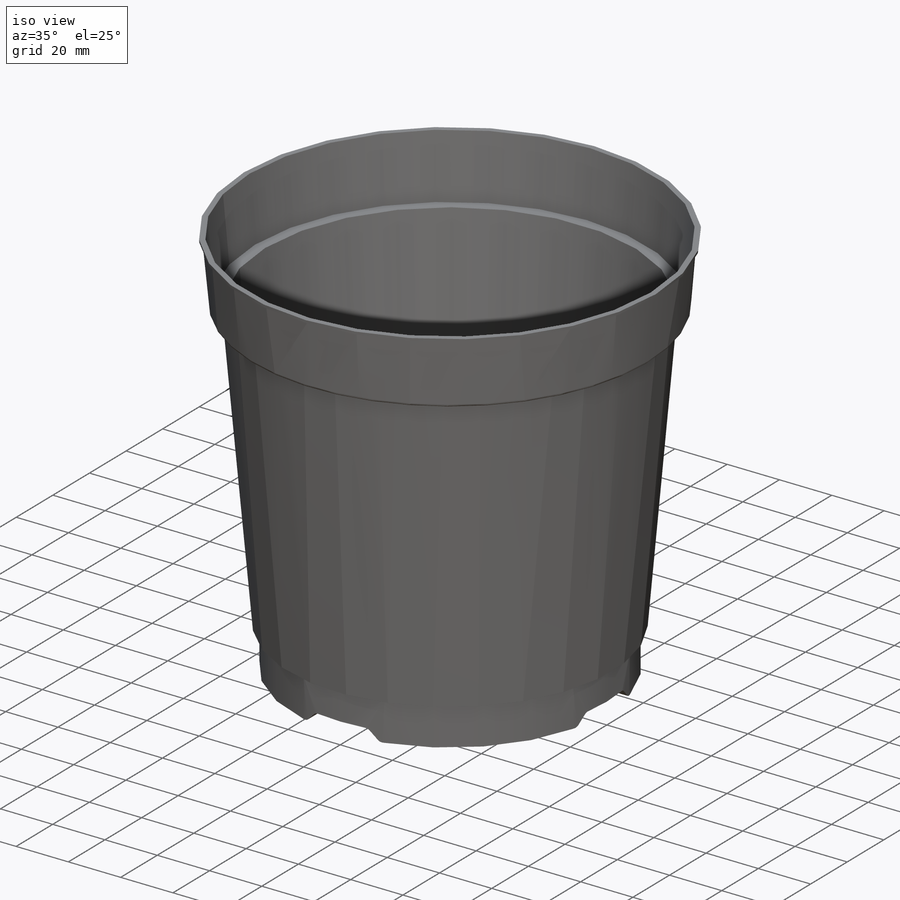
[diagram: iso view]
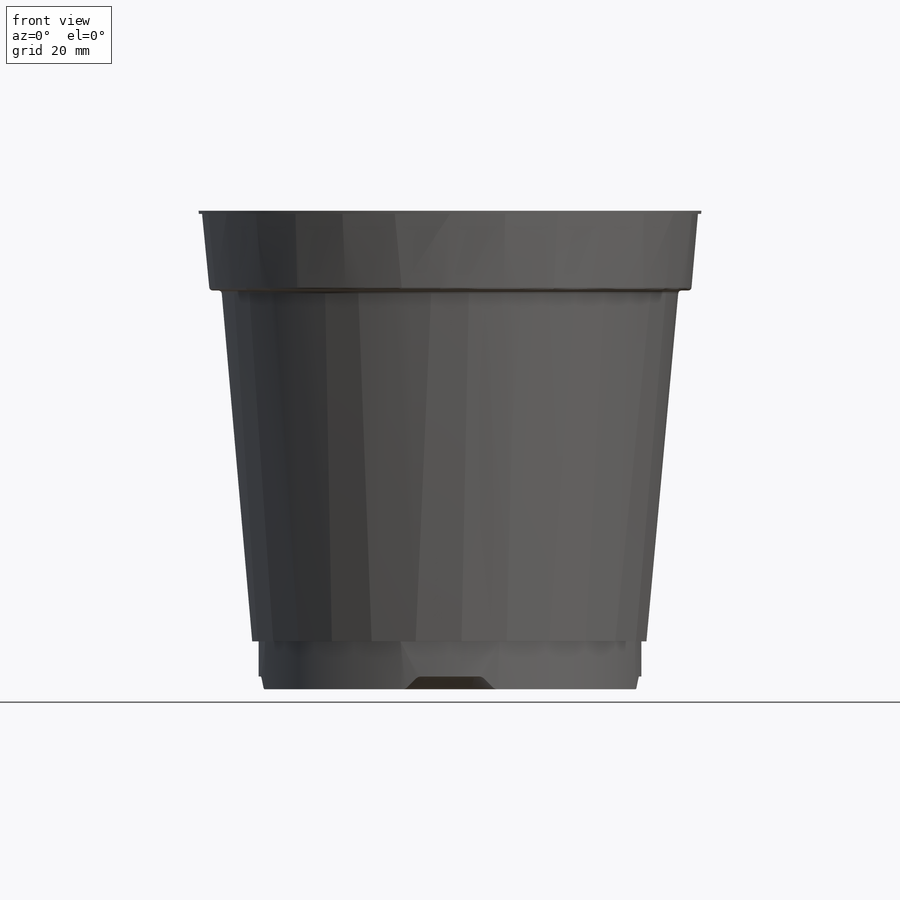
[diagram: front view]
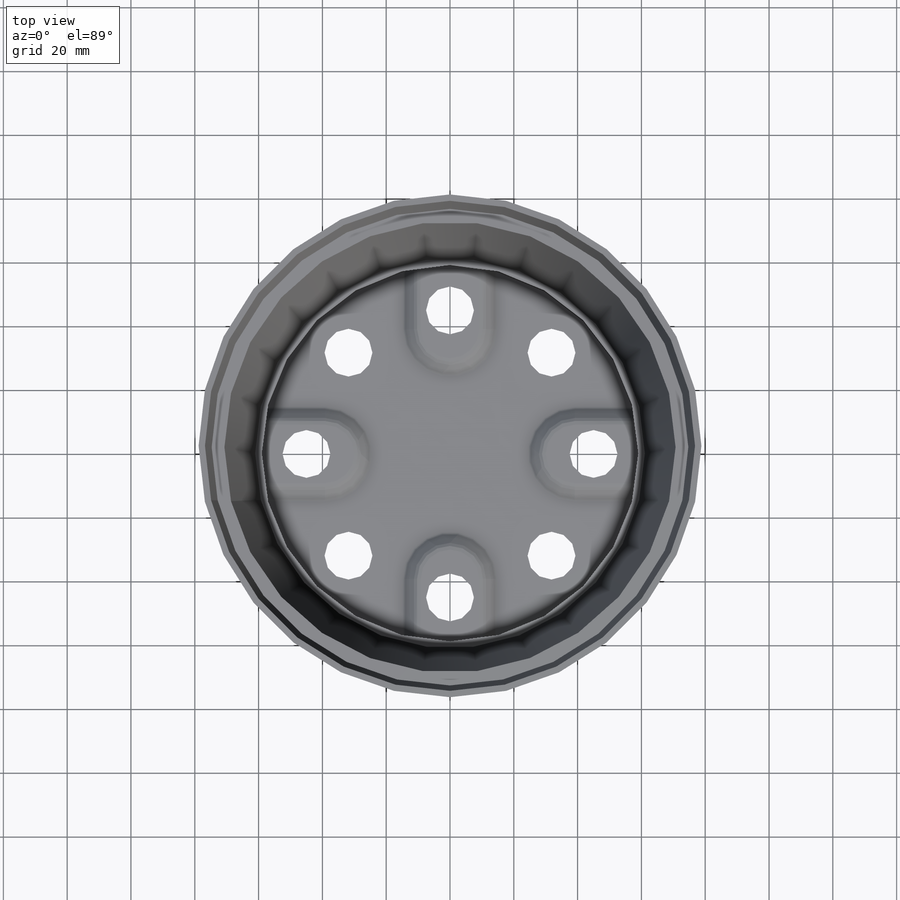
[diagram: top view]
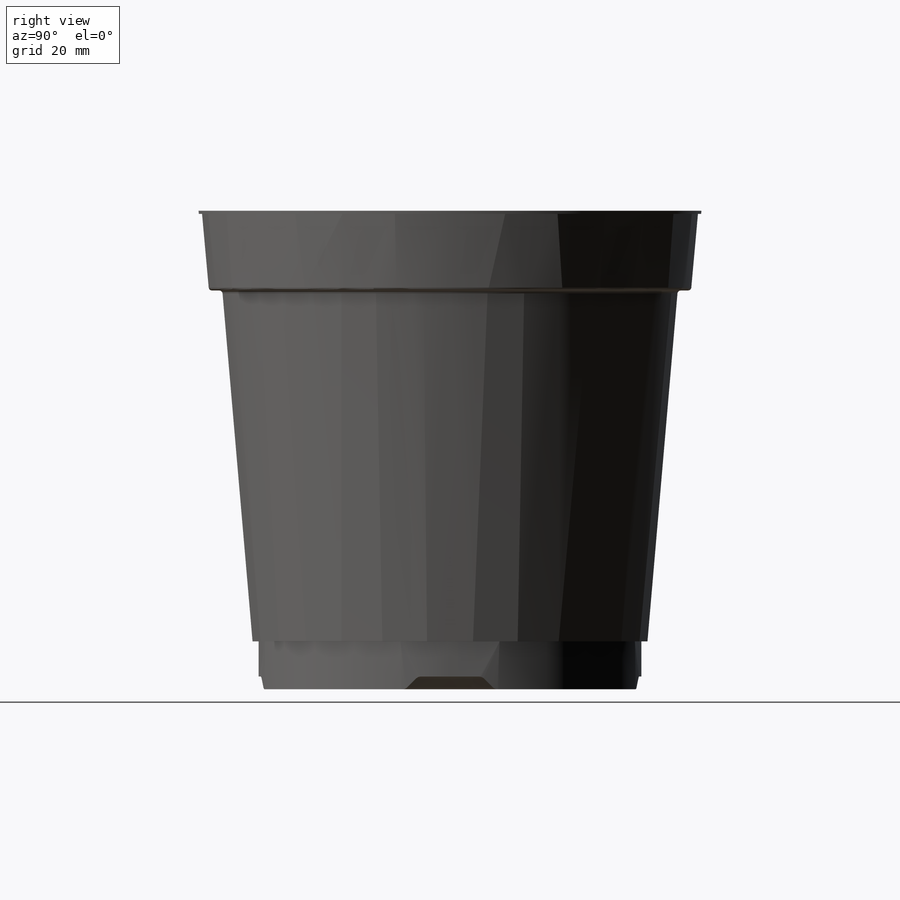
[diagram: right view]
SOLIDWORKS PART (.sldprt)
format: sldprt  version: not decoded by parser v0  size: 316,416 bytes
history: native  units: mm
features: sketch x4, revolve x2, fillet x2, pattern_circular x2, material x1, cut_extrude x1, chamfer x1, shell x1, hole x1 (+15 scaffold rows collapsed)
feature tree (30):
  scaffold x15  (default folders/planes/origin — collapsed)
  material  "Material <not specified>"
  sketch  "Sketch2"  dims[c1.D1=150.0mm c1.D2=43.144mm c2.D1=60.0mm c2.D2=150.0mm c2.D3=15.0mm c2.D4=125.0mm c2.D5=4.0mm c2.D6=2.0mm c2.D7=~158.275658mm c3.D7=~55.64648deg c4.D7=~158.275658mm c5.D7=85.0deg]
  revolve  "Main Body"  Angle=360deg
  sketch  "Sketch3"  dims[D2=10.0mm D1=20.0mm]
  cut_extrude  "Base Cut"  Depth=4mm
  chamfer  "Chamfer1"  Distance=4mm Angle=45deg
  fillet  "Fillet1"  Radius=2mm
  pattern_circular  "Base Cut Pattern"  Count=4 Angle=360deg
  shell  "Shell1"  Thickness=1mm
  sketch  "Sketch4"  dims[c1.D1=60.0mm c1.D2=15.0mm c2.D1=45.0mm]
  hole  "Circular Hole"  [1 undecoded]
  pattern_circular  "Base Circles Pattern"  Count=8 Angle=360deg
  sketch  "Sketch6"  dims[D1=1.0mm D2=1.0mm]
  revolve  "Revolve1"  Angle=360deg
  fillet  "Fillet2"  Radius=1mm
decode coverage: 13 of 14 modeling features carry decoded parameters
note: ~ marks probable driven/reference dimensions
note: 1 parameter value undecoded
note: suppression state not decoded; provenance and decode notes live in map.json
